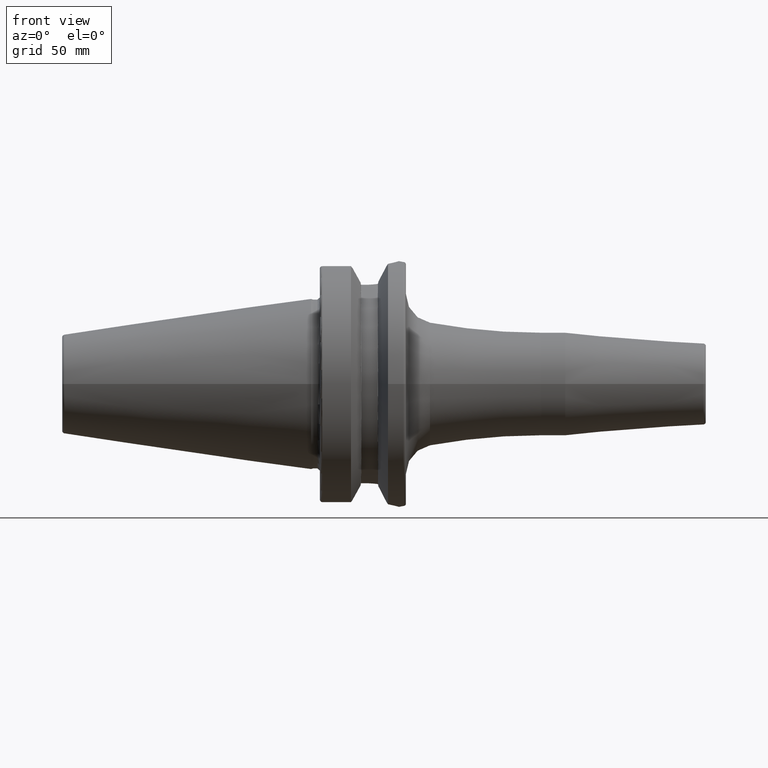
[diagram: clean part render]
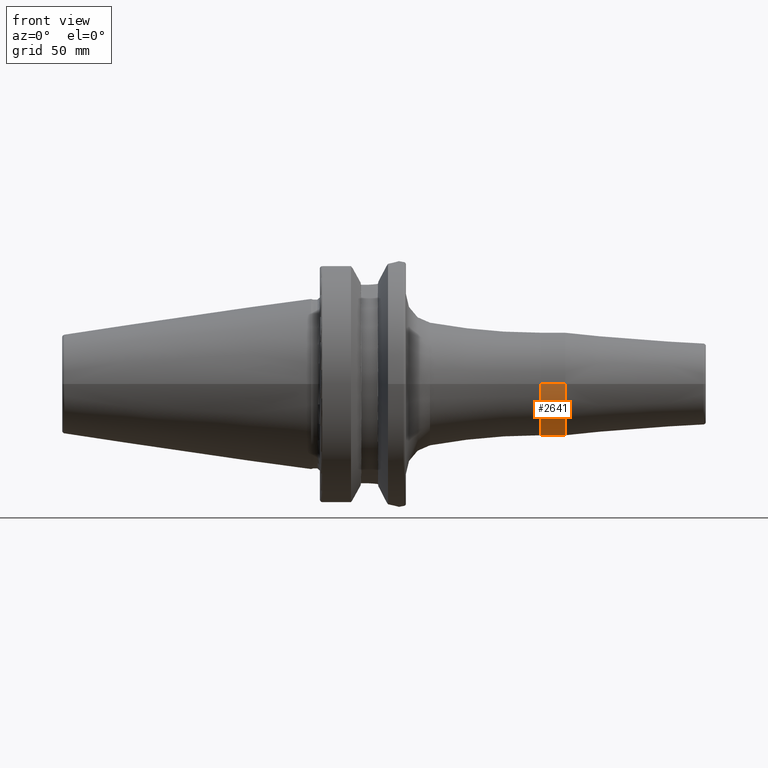
[diagram: same view with one face highlighted and labeled with its STEP entity id]
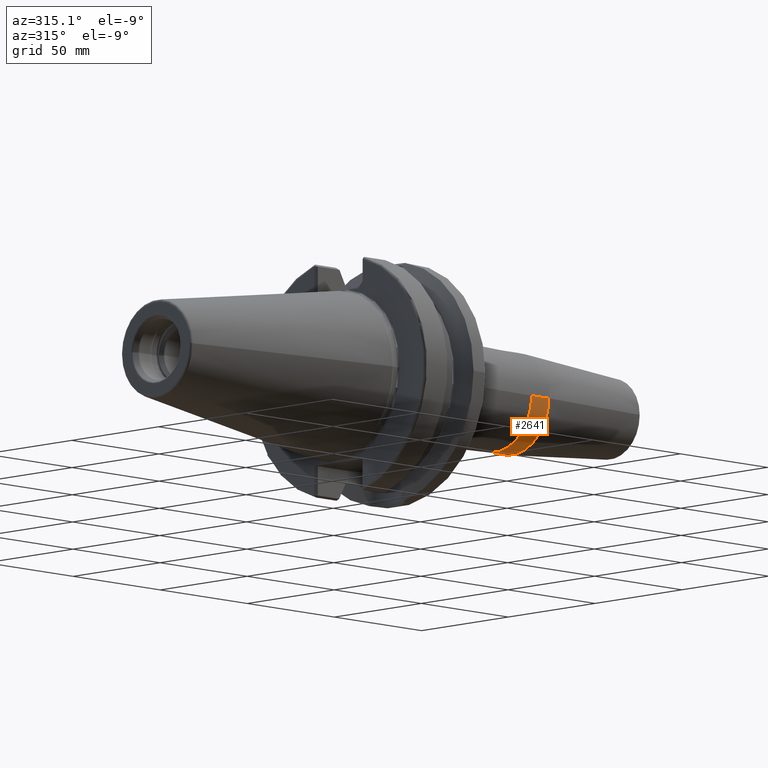
[diagram: same view with one face highlighted and labeled with its STEP entity id]
A machine part, front view. The second image highlights one B-rep face of the part: STEP entity #2641.
A second angle (auxiliary view) of the same face is appended — the face is thin or edge-on in the first view.
In plain terms, the highlighted cylindrical surface (partial cylindrical patch) has radius 21 mm, axis along (1, 0, 0).
Its self-contained STEP definition (entity closure, byte-faithful):
#874=CARTESIAN_POINT('',(9.3E1,0.E0,0.E0));
#875=DIRECTION('',(1.E0,0.E0,0.E0));
#876=DIRECTION('',(0.E0,-1.E0,0.E0));
#877=AXIS2_PLACEMENT_3D('',#874,#875,#876);
#879=DIRECTION('',(-1.E0,0.E0,0.E0));
#880=VECTOR('',#879,9.822078687214E0);
#881=CARTESIAN_POINT('',(1.028220786872E2,-2.1E1,0.E0));
#882=LINE('',#881,#880);
#883=CARTESIAN_POINT('',(1.028220786872E2,0.E0,0.E0));
#884=DIRECTION('',(-1.E0,0.E0,0.E0));
#885=DIRECTION('',(0.E0,1.E0,0.E0));
#886=AXIS2_PLACEMENT_3D('',#883,#884,#885);
#888=DIRECTION('',(-1.E0,0.E0,0.E0));
#889=VECTOR('',#888,9.822078687214E0);
#890=CARTESIAN_POINT('',(1.028220786872E2,2.1E1,0.E0));
#891=LINE('',#890,#889);
#1411=CARTESIAN_POINT('',(1.028220786872E2,2.1E1,0.E0));
#1412=CARTESIAN_POINT('',(1.028220786872E2,-2.1E1,0.E0));
#1413=VERTEX_POINT('',#1411);
#1414=VERTEX_POINT('',#1412);
#1439=CARTESIAN_POINT('',(9.3E1,2.1E1,0.E0));
#1440=VERTEX_POINT('',#1439);
#1441=CARTESIAN_POINT('',(9.3E1,-2.1E1,0.E0));
#1442=VERTEX_POINT('',#1441);
#2627=CARTESIAN_POINT('',(3.19E1,0.E0,0.E0));
#2628=DIRECTION('',(1.E0,0.E0,0.E0));
#2629=DIRECTION('',(0.E0,-1.E0,0.E0));
#2630=AXIS2_PLACEMENT_3D('',#2627,#2628,#2629);
#2631=CYLINDRICAL_SURFACE('',#2630,2.1E1);
#2632=ORIENTED_EDGE('',*,*,#2621,.F.);
#2634=ORIENTED_EDGE('',*,*,#2633,.F.);
#2636=ORIENTED_EDGE('',*,*,#2635,.F.);
#2638=ORIENTED_EDGE('',*,*,#2637,.T.);
#2639=EDGE_LOOP('',(#2632,#2634,#2636,#2638));
#2640=FACE_OUTER_BOUND('',#2639,.F.);
#2641=ADVANCED_FACE('',(#2640),#2631,.T.);
#878=CIRCLE('',#877,2.1E1);
#887=CIRCLE('',#886,2.1E1);
#2621=EDGE_CURVE('',#1442,#1440,#878,.T.);
#2633=EDGE_CURVE('',#1414,#1442,#882,.T.);
#2635=EDGE_CURVE('',#1413,#1414,#887,.T.);
#2637=EDGE_CURVE('',#1413,#1440,#891,.T.);